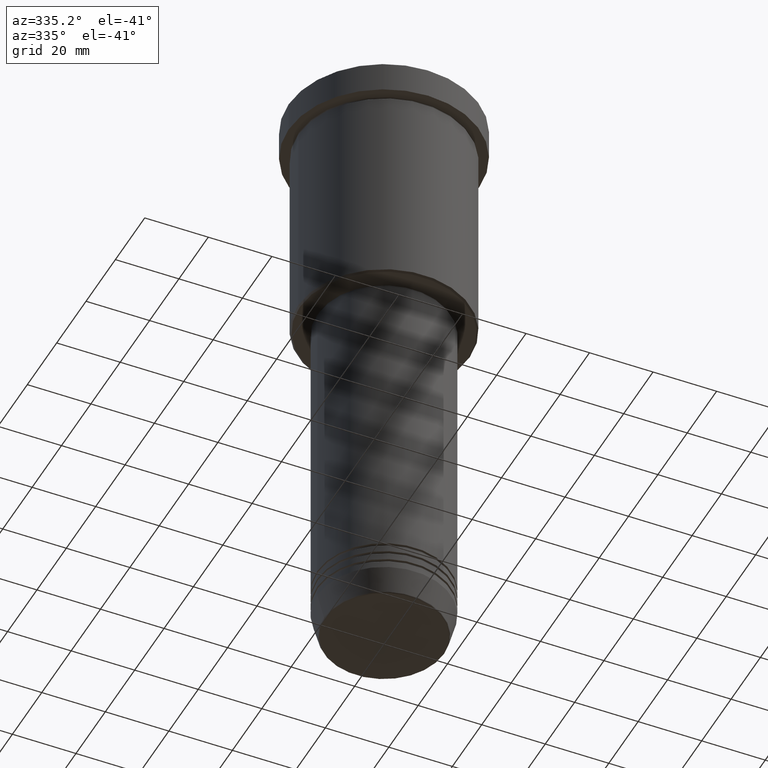
[diagram: clean part render]
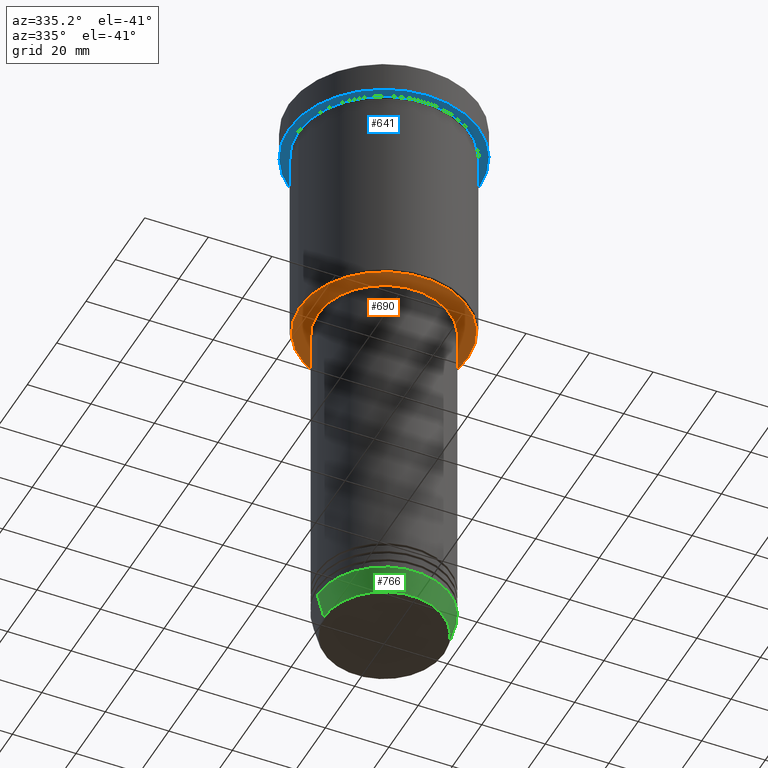
[diagram: same view with three faces highlighted in distinct colors, each labeled with its STEP entity id]
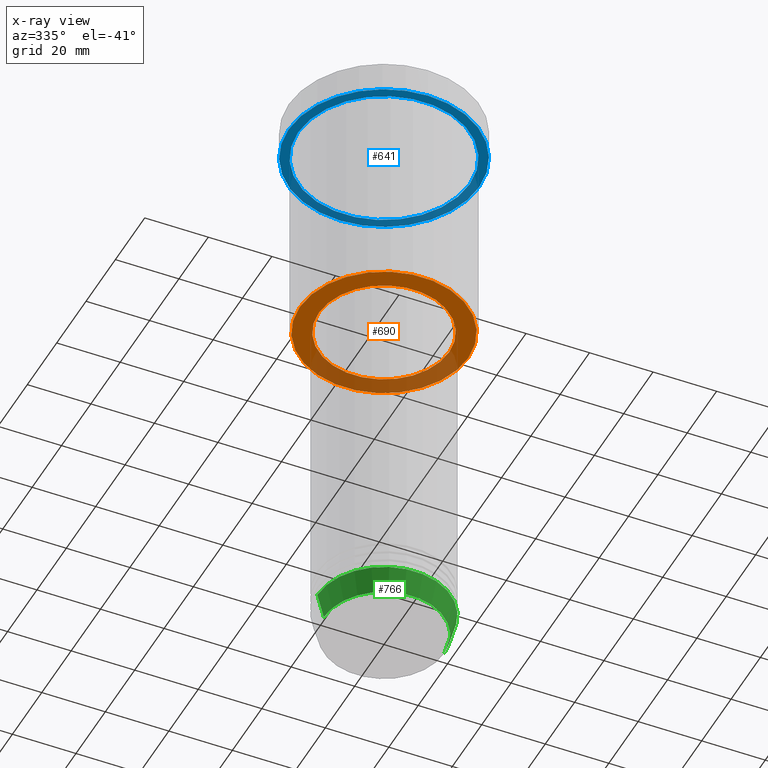
[diagram: x-ray of the same camera — body ghosted, the three highlighted faces saturated]
A machine part, auxiliary view with three faces highlighted in distinct colors.
The next image is the same camera in x-ray (body ghosted, the three faces saturated) — at least one of them is partly hidden behind the body in this view.
Their STEP definitions:

[orange] entity #690 — the highlighted planar face has unit normal (0, 0, -1).
#20 = CARTESIAN_POINT ( 'NONE',  ( 0.000000000000000000, 0.000000000000000000, -76.00000000000001421 ) ) ;
#25 = CARTESIAN_POINT ( 'NONE',  ( 0.000000000000000000, 0.000000000000000000, -76.00000000000001421 ) ) ;
#32 = AXIS2_PLACEMENT_3D ( 'NONE', #25, #124, #683 ) ;
#38 = DIRECTION ( 'NONE',  ( -1.000000000000000000, 0.000000000000000000, 0.000000000000000000 ) ) ;
#56 = AXIS2_PLACEMENT_3D ( 'NONE', #1171, #513, #768 ) ;
#61 = CARTESIAN_POINT ( 'NONE',  ( 0.000000000000000000, 27.00000000000000355, -76.00000000000001421 ) ) ;
#63 = DIRECTION ( 'NONE',  ( 1.000000000000000000, 0.000000000000000000, 0.000000000000000000 ) ) ;
#124 = DIRECTION ( 'NONE',  ( 0.000000000000000000, 0.000000000000000000, -1.000000000000000000 ) ) ;
#150 = ORIENTED_EDGE ( 'NONE', *, *, #539, .T. ) ;
#220 = CARTESIAN_POINT ( 'NONE',  ( -26.50000000000001066, 3.275930187719170735E-15, -76.00000000000001421 ) ) ;
#237 = VERTEX_POINT ( 'NONE', #220 ) ;
#249 = DIRECTION ( 'NONE',  ( 0.000000000000000000, 0.000000000000000000, -1.000000000000000000 ) ) ;
#267 = CIRCLE ( 'NONE', #304, 26.50000000000001066 ) ;
#272 = EDGE_LOOP ( 'NONE', ( #150, #519 ) ) ;
#285 = CARTESIAN_POINT ( 'NONE',  ( 26.50000000000001066, 0.000000000000000000, -76.00000000000001421 ) ) ;
#289 = VERTEX_POINT ( 'NONE', #518 ) ;
#304 = AXIS2_PLACEMENT_3D ( 'NONE', #20, #869, #38 ) ;
#348 = ORIENTED_EDGE ( 'NONE', *, *, #1015, .T. ) ;
#422 = DIRECTION ( 'NONE',  ( -1.000000000000000000, 0.000000000000000000, -0.000000000000000000 ) ) ;
#448 = ORIENTED_EDGE ( 'NONE', *, *, #733, .T. ) ;
#449 = AXIS2_PLACEMENT_3D ( 'NONE', #786, #600, #63 ) ;
#476 = FACE_OUTER_BOUND ( 'NONE', #1029, .T. ) ;
#513 = DIRECTION ( 'NONE',  ( -0.000000000000000000, -0.000000000000000000, 1.000000000000000000 ) ) ;
#517 = CARTESIAN_POINT ( 'NONE',  ( 20.50000000000000000, 0.000000000000000000, -76.00000000000001421 ) ) ;
#518 = CARTESIAN_POINT ( 'NONE',  ( -20.50000000000000000, 2.510525938252074481E-15, -76.00000000000001421 ) ) ;
#519 = ORIENTED_EDGE ( 'NONE', *, *, #972, .T. ) ;
#539 = EDGE_CURVE ( 'NONE', #802, #289, #737, .T. ) ;
#600 = DIRECTION ( 'NONE',  ( -0.000000000000000000, -0.000000000000000000, 1.000000000000000000 ) ) ;
#668 = CIRCLE ( 'NONE', #56, 20.50000000000000000 ) ;
#683 = DIRECTION ( 'NONE',  ( -1.000000000000000000, 0.000000000000000000, 0.000000000000000000 ) ) ;
#690 = ADVANCED_FACE ( 'NONE', ( #476, #714 ), #1055, .T. ) ;
#714 = FACE_BOUND ( 'NONE', #272, .T. ) ;
#733 = EDGE_CURVE ( 'NONE', #237, #987, #780, .T. ) ;
#737 = CIRCLE ( 'NONE', #449, 20.50000000000000000 ) ;
#768 = DIRECTION ( 'NONE',  ( 1.000000000000000000, 0.000000000000000000, 0.000000000000000000 ) ) ;
#780 = CIRCLE ( 'NONE', #32, 26.50000000000001066 ) ;
#786 = CARTESIAN_POINT ( 'NONE',  ( 0.000000000000000000, 0.000000000000000000, -76.00000000000001421 ) ) ;
#802 = VERTEX_POINT ( 'NONE', #517 ) ;
#869 = DIRECTION ( 'NONE',  ( 0.000000000000000000, 0.000000000000000000, -1.000000000000000000 ) ) ;
#880 = AXIS2_PLACEMENT_3D ( 'NONE', #61, #249, #422 ) ;
#972 = EDGE_CURVE ( 'NONE', #289, #802, #668, .T. ) ;
#987 = VERTEX_POINT ( 'NONE', #285 ) ;
#1015 = EDGE_CURVE ( 'NONE', #987, #237, #267, .T. ) ;
#1029 = EDGE_LOOP ( 'NONE', ( #348, #448 ) ) ;
#1055 = PLANE ( 'NONE',  #880 ) ;
#1171 = CARTESIAN_POINT ( 'NONE',  ( 0.000000000000000000, 0.000000000000000000, -76.00000000000001421 ) ) ;

[blue] entity #641 — the highlighted planar face has unit normal (0, 0, -1).
#6 = CARTESIAN_POINT ( 'NONE',  ( -30.00000000000000000, 3.673940397442059178E-15, -9.999999999999992895 ) ) ;
#72 = CIRCLE ( 'NONE', #550, 30.00000000000000000 ) ;
#84 = DIRECTION ( 'NONE',  ( 1.000000000000000000, 0.000000000000000000, 0.000000000000000000 ) ) ;
#131 = EDGE_CURVE ( 'NONE', #1074, #442, #338, .T. ) ;
#152 = DIRECTION ( 'NONE',  ( 0.000000000000000000, 0.000000000000000000, -1.000000000000000000 ) ) ;
#202 = CARTESIAN_POINT ( 'NONE',  ( 0.000000000000000000, 0.000000000000000000, -9.999999999999992895 ) ) ;
#214 = CARTESIAN_POINT ( 'NONE',  ( -27.00000000000000355, 0.000000000000000000, -9.999999999999992895 ) ) ;
#246 = DIRECTION ( 'NONE',  ( 1.000000000000000000, 0.000000000000000000, 0.000000000000000000 ) ) ;
#257 = EDGE_LOOP ( 'NONE', ( #475, #376 ) ) ;
#338 = CIRCLE ( 'NONE', #546, 27.00000000000000355 ) ;
#352 = CARTESIAN_POINT ( 'NONE',  ( 0.000000000000000000, 0.000000000000000000, -9.999999999999992895 ) ) ;
#376 = ORIENTED_EDGE ( 'NONE', *, *, #131, .T. ) ;
#430 = AXIS2_PLACEMENT_3D ( 'NONE', #897, #152, #624 ) ;
#442 = VERTEX_POINT ( 'NONE', #214 ) ;
#475 = ORIENTED_EDGE ( 'NONE', *, *, #556, .T. ) ;
#478 = FACE_BOUND ( 'NONE', #257, .T. ) ;
#501 = DIRECTION ( 'NONE',  ( -0.000000000000000000, -0.000000000000000000, 1.000000000000000000 ) ) ;
#525 = CIRCLE ( 'NONE', #1117, 27.00000000000000355 ) ;
#532 = CARTESIAN_POINT ( 'NONE',  ( 0.000000000000000000, 0.000000000000000000, -9.999999999999992895 ) ) ;
#546 = AXIS2_PLACEMENT_3D ( 'NONE', #202, #924, #659 ) ;
#550 = AXIS2_PLACEMENT_3D ( 'NONE', #532, #1164, #84 ) ;
#556 = EDGE_CURVE ( 'NONE', #442, #1074, #525, .T. ) ;
#616 = EDGE_LOOP ( 'NONE', ( #824, #925 ) ) ;
#621 = CARTESIAN_POINT ( 'NONE',  ( 30.00000000000000000, 0.000000000000000000, -9.999999999999992895 ) ) ;
#624 = DIRECTION ( 'NONE',  ( -1.000000000000000000, 0.000000000000000000, -0.000000000000000000 ) ) ;
#625 = DIRECTION ( 'NONE',  ( -1.000000000000000000, 0.000000000000000000, 0.000000000000000000 ) ) ;
#635 = VERTEX_POINT ( 'NONE', #6 ) ;
#640 = FACE_OUTER_BOUND ( 'NONE', #616, .T. ) ;
#641 = ADVANCED_FACE ( 'NONE', ( #478, #640 ), #889, .T. ) ;
#650 = EDGE_CURVE ( 'NONE', #1142, #635, #72, .T. ) ;
#659 = DIRECTION ( 'NONE',  ( -1.000000000000000000, 0.000000000000000000, 0.000000000000000000 ) ) ;
#687 = CIRCLE ( 'NONE', #1151, 30.00000000000000000 ) ;
#824 = ORIENTED_EDGE ( 'NONE', *, *, #650, .F. ) ;
#853 = CARTESIAN_POINT ( 'NONE',  ( 27.00000000000000355, 3.306546357697854128E-15, -9.999999999999992895 ) ) ;
#889 = PLANE ( 'NONE',  #430 ) ;
#897 = CARTESIAN_POINT ( 'NONE',  ( 0.000000000000000000, 30.00000000000000000, -9.999999999999992895 ) ) ;
#917 = EDGE_CURVE ( 'NONE', #635, #1142, #687, .T. ) ;
#924 = DIRECTION ( 'NONE',  ( -0.000000000000000000, -0.000000000000000000, 1.000000000000000000 ) ) ;
#925 = ORIENTED_EDGE ( 'NONE', *, *, #917, .F. ) ;
#958 = DIRECTION ( 'NONE',  ( -0.000000000000000000, -0.000000000000000000, 1.000000000000000000 ) ) ;
#1074 = VERTEX_POINT ( 'NONE', #853 ) ;
#1117 = AXIS2_PLACEMENT_3D ( 'NONE', #352, #501, #625 ) ;
#1142 = VERTEX_POINT ( 'NONE', #621 ) ;
#1151 = AXIS2_PLACEMENT_3D ( 'NONE', #1158, #958, #246 ) ;
#1158 = CARTESIAN_POINT ( 'NONE',  ( 0.000000000000000000, 0.000000000000000000, -9.999999999999992895 ) ) ;
#1164 = DIRECTION ( 'NONE',  ( -0.000000000000000000, -0.000000000000000000, 1.000000000000000000 ) ) ;

[green] entity #766 — the highlighted conical surface has half-angle 15 deg.
#34 = LINE ( 'NONE', #678, #526 ) ;
#36 = CARTESIAN_POINT ( 'NONE',  ( 0.000000000000000000, 0.000000000000000000, -183.0000000000000284 ) ) ;
#45 = CARTESIAN_POINT ( 'NONE',  ( 0.000000000000000000, 0.000000000000000000, -190.6294095225512706 ) ) ;
#68 = CARTESIAN_POINT ( 'NONE',  ( -21.00000000000000000, 2.571758278209441661E-15, -183.0000000000000284 ) ) ;
#136 = LINE ( 'NONE', #663, #702 ) ;
#154 = CARTESIAN_POINT ( 'NONE',  ( 21.00000000000000000, 0.000000000000000000, -183.0000000000000284 ) ) ;
#155 = CARTESIAN_POINT ( 'NONE',  ( -18.95570587970606624, 2.446581365662755730E-15, -190.6294095225512706 ) ) ;
#200 = CARTESIAN_POINT ( 'NONE',  ( 18.95570587970606624, 0.000000000000000000, -190.6294095225512706 ) ) ;
#234 = CARTESIAN_POINT ( 'NONE',  ( 0.000000000000000000, 0.000000000000000000, -183.0000000000000284 ) ) ;
#239 = EDGE_CURVE ( 'NONE', #537, #602, #317, .T. ) ;
#317 = CIRCLE ( 'NONE', #361, 21.00000000000000000 ) ;
#323 = DIRECTION ( 'NONE',  ( -0.2588190451025213501, 3.169619151431772337E-17, 0.9659258262890680902 ) ) ;
#361 = AXIS2_PLACEMENT_3D ( 'NONE', #36, #581, #402 ) ;
#380 = AXIS2_PLACEMENT_3D ( 'NONE', #45, #1021, #1126 ) ;
#402 = DIRECTION ( 'NONE',  ( 1.000000000000000000, 0.000000000000000000, 0.000000000000000000 ) ) ;
#420 = ORIENTED_EDGE ( 'NONE', *, *, #749, .F. ) ;
#490 = EDGE_LOOP ( 'NONE', ( #420, #656, #1147, #1111 ) ) ;
#526 = VECTOR ( 'NONE', #699, 1000.000000000000000 ) ;
#537 = VERTEX_POINT ( 'NONE', #68 ) ;
#581 = DIRECTION ( 'NONE',  ( -0.000000000000000000, -0.000000000000000000, 1.000000000000000000 ) ) ;
#597 = DIRECTION ( 'NONE',  ( -0.000000000000000000, -0.000000000000000000, 1.000000000000000000 ) ) ;
#602 = VERTEX_POINT ( 'NONE', #154 ) ;
#656 = ORIENTED_EDGE ( 'NONE', *, *, #1032, .T. ) ;
#663 = CARTESIAN_POINT ( 'NONE',  ( -21.00000000000000000, 2.571758278209441661E-15, -183.0000000000000284 ) ) ;
#678 = CARTESIAN_POINT ( 'NONE',  ( 21.00000000000000000, 0.000000000000000000, -183.0000000000000284 ) ) ;
#689 = CIRCLE ( 'NONE', #380, 18.95570587970606624 ) ;
#699 = DIRECTION ( 'NONE',  ( 0.2588190451025213501, 0.000000000000000000, 0.9659258262890680902 ) ) ;
#702 = VECTOR ( 'NONE', #323, 1000.000000000000000 ) ;
#749 = EDGE_CURVE ( 'NONE', #860, #537, #136, .T. ) ;
#766 = ADVANCED_FACE ( 'NONE', ( #1113 ), #967, .T. ) ;
#840 = AXIS2_PLACEMENT_3D ( 'NONE', #234, #597, #847 ) ;
#847 = DIRECTION ( 'NONE',  ( 1.000000000000000000, 0.000000000000000000, 0.000000000000000000 ) ) ;
#860 = VERTEX_POINT ( 'NONE', #155 ) ;
#872 = VERTEX_POINT ( 'NONE', #200 ) ;
#883 = EDGE_CURVE ( 'NONE', #872, #602, #34, .T. ) ;
#967 = CONICAL_SURFACE ( 'NONE', #840, 21.00000000000000000, 0.2617993877991500740 ) ;
#1021 = DIRECTION ( 'NONE',  ( -0.000000000000000000, -0.000000000000000000, 1.000000000000000000 ) ) ;
#1032 = EDGE_CURVE ( 'NONE', #860, #872, #689, .T. ) ;
#1111 = ORIENTED_EDGE ( 'NONE', *, *, #239, .F. ) ;
#1113 = FACE_OUTER_BOUND ( 'NONE', #490, .T. ) ;
#1126 = DIRECTION ( 'NONE',  ( 1.000000000000000000, 0.000000000000000000, 0.000000000000000000 ) ) ;
#1147 = ORIENTED_EDGE ( 'NONE', *, *, #883, .T. ) ;